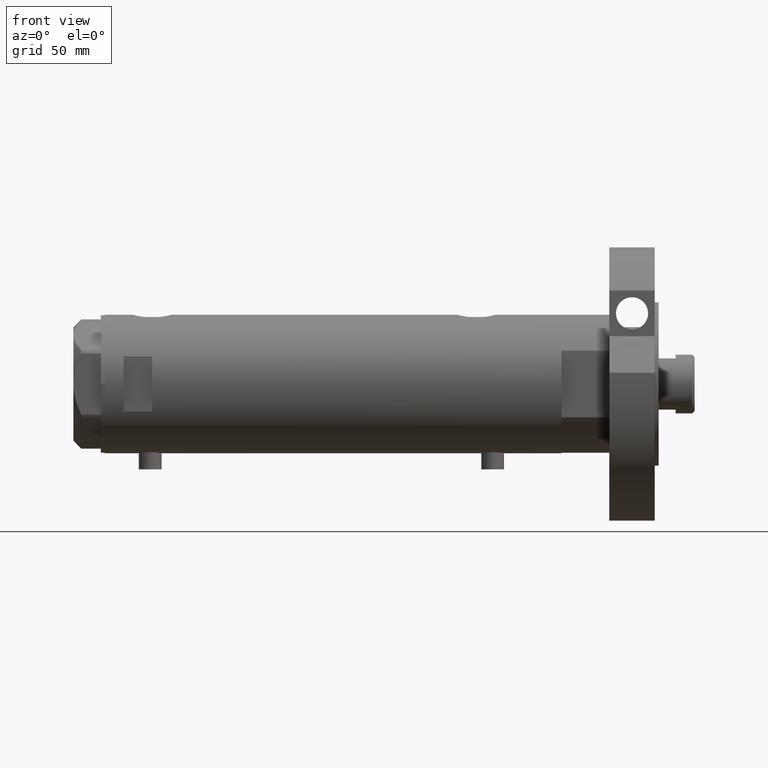
[diagram: clean part render]
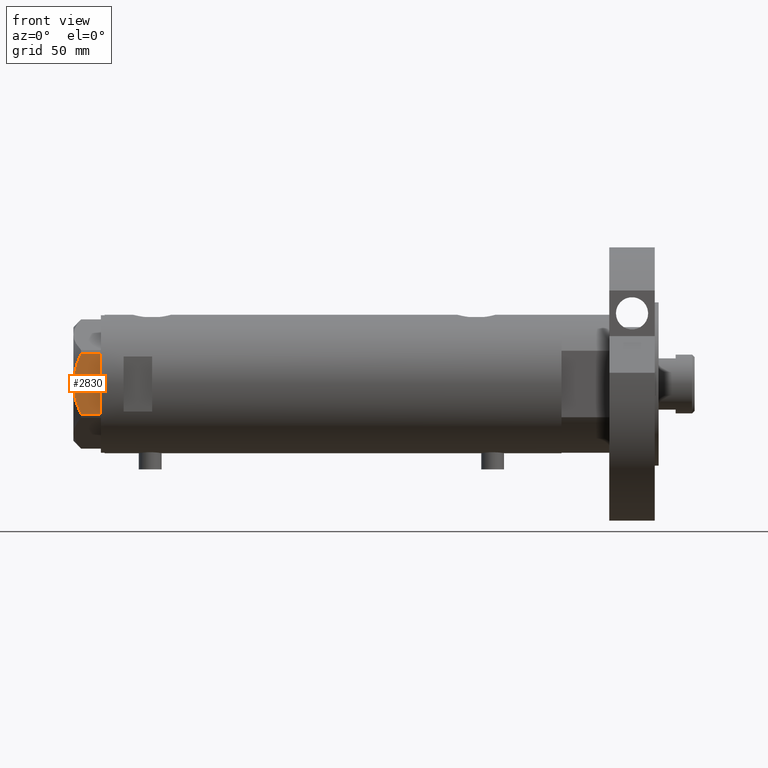
[diagram: same view with one face highlighted and labeled with its STEP entity id]
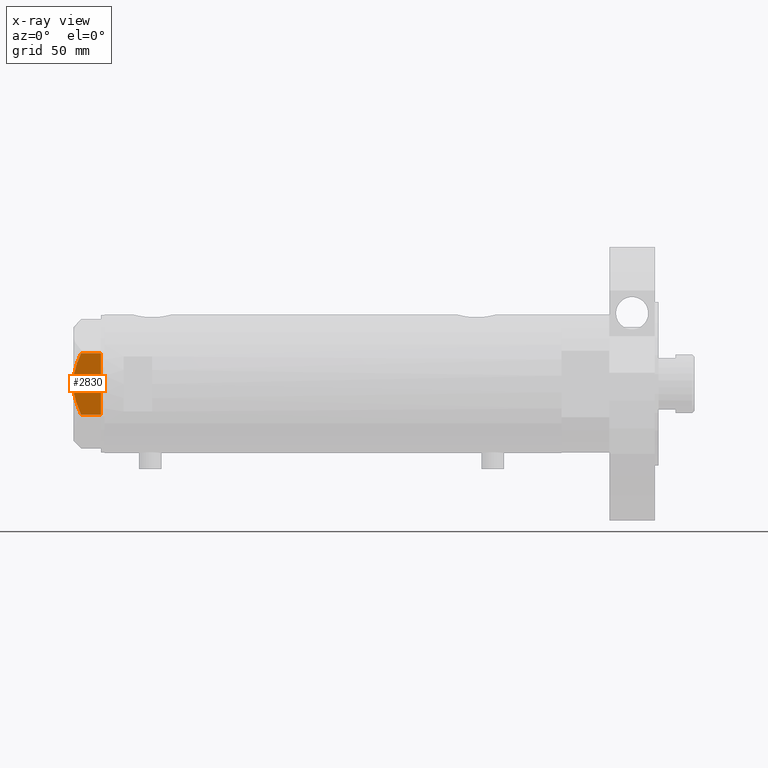
[diagram: x-ray of the same camera — body ghosted, the highlighted face saturated]
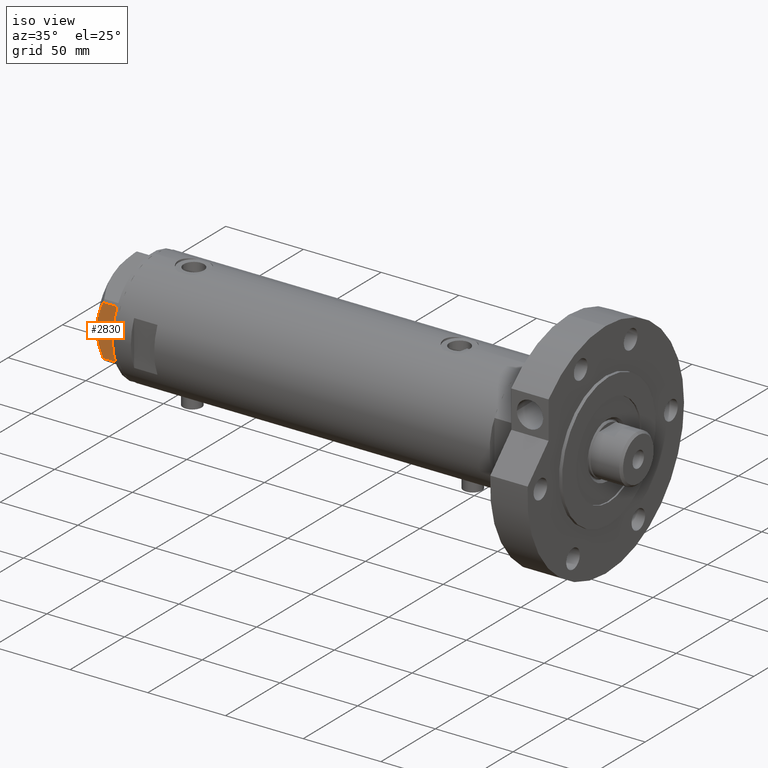
[diagram: same view with one face highlighted and labeled with its STEP entity id]
A machine part, front view. The second image highlights one B-rep face of the part: STEP entity #2830.
The next image is the same camera in x-ray: the body ghosted, the highlighted face saturated — about 0% of this face is hidden behind the body in this view.
A second angle (iso view) of the same face is appended — the face is thin or edge-on in the first view.
In plain terms, the highlighted planar face has unit normal (-0, 1, 0).
Its self-contained STEP definition (entity closure, byte-faithful):
#104 = DIRECTION ( 'NONE',  ( 0.000000000000000000, 0.000000000000000000, 1.000000000000000000 ) ) ;
#144 = CARTESIAN_POINT ( 'NONE',  ( -29.99999999999999289, -5.607365453019637513, 14.01139032121647965 ) ) ;
#173 = CARTESIAN_POINT ( 'NONE',  ( -30.00000000000000000, 0.000000000000000000, 14.50000000000000000 ) ) ;
#239 = CARTESIAN_POINT ( 'NONE',  ( -30.00000000000000000, 17.32050807568877460, 14.50000000000000000 ) ) ;
#299 = CARTESIAN_POINT ( 'NONE',  ( -30.00000000000000000, 17.32050807568877460, 0.000000000000000000 ) ) ;
#351 = EDGE_CURVE ( 'NONE', #1240, #4100, #5952, .T. ) ;
#368 = VECTOR ( 'NONE', #3786, 1000.000000000000000 ) ;
#469 = LINE ( 'NONE', #5257, #702 ) ;
#607 = CARTESIAN_POINT ( 'NONE',  ( -30.00000000000000000, 16.20050807568875584, 10.40518423703603546 ) ) ;
#611 = CARTESIAN_POINT ( 'NONE',  ( -30.00000000000000000, -16.20050807568876294, 10.40518423703603901 ) ) ;
#702 = VECTOR ( 'NONE', #104, 1000.000000000000000 ) ;
#827 = CARTESIAN_POINT ( 'NONE',  ( -30.00000000000000000, 16.20050807568875584, 14.50000000000000000 ) ) ;
#863 = CARTESIAN_POINT ( 'NONE',  ( -30.00000000000000711, 2.830925467268496476, 14.50000000000000533 ) ) ;
#902 = CARTESIAN_POINT ( 'NONE',  ( -30.00000000000000000, 9.655259153795977767, 12.99093232113973606 ) ) ;
#947 = VERTEX_POINT ( 'NONE', #6074 ) ;
#1154 = CARTESIAN_POINT ( 'NONE',  ( -30.00000000000000000, 16.20050807568875584, 10.40518423703603546 ) ) ;
#1240 = VERTEX_POINT ( 'NONE', #5923 ) ;
#1304 = EDGE_CURVE ( 'NONE', #1854, #1240, #1834, .T. ) ;
#1592 = ORIENTED_EDGE ( 'NONE', *, *, #1304, .T. ) ;
#1649 = DIRECTION ( 'NONE',  ( -0.000000000000000000, 0.000000000000000000, -1.000000000000000000 ) ) ;
#1674 = CARTESIAN_POINT ( 'NONE',  ( -29.99999999999999645, -12.97715359595204809, 11.81918444541430624 ) ) ;
#1751 = CARTESIAN_POINT ( 'NONE',  ( -30.00000000000000000, 11.66725319103952607, 12.31690447555093293 ) ) ;
#1834 = LINE ( 'NONE', #827, #368 ) ;
#1840 = VECTOR ( 'NONE', #4006, 1000.000000000000000 ) ;
#1854 = VERTEX_POINT ( 'NONE', #607 ) ;
#1967 = B_SPLINE_CURVE_WITH_KNOTS ( 'NONE', 3,
 ( #1154, #5018, #3581, #1751, #5122, #902, #3211, #2247, #863, #2700 ),
 .UNSPECIFIED., .F., .F.,
 ( 4, 2, 2, 2, 4 ),
 ( 0.04501738275285960267, 0.04922240792374713014, 0.05132492050919089388, 0.05342743309463465068, 0.06183748343640969869 ),
 .UNSPECIFIED. ) ;
#2024 = CARTESIAN_POINT ( 'NONE',  ( -29.99999999999999289, -13.63320717147166405, 11.55272916346384804 ) ) ;
#2247 = CARTESIAN_POINT ( 'NONE',  ( -30.00000000000000000, 5.593935073701701732, 14.09487059093540573 ) ) ;
#2602 = CARTESIAN_POINT ( 'NONE',  ( -30.00000000000000000, -6.973771051792319042, 13.72753822183687511 ) ) ;
#2700 = CARTESIAN_POINT ( 'NONE',  ( -30.00000000000000000, 0.000000000000000000, 14.50000000000000000 ) ) ;
#2830 = ADVANCED_FACE ( 'NONE', ( #5920 ), #3657, .F. ) ;
#2980 = CARTESIAN_POINT ( 'NONE',  ( -30.00000000000000000, -3.526431665117130798, 14.30125973663612626 ) ) ;
#3032 = EDGE_LOOP ( 'NONE', ( #3815, #1592, #5856, #4400, #4227 ) ) ;
#3108 = CARTESIAN_POINT ( 'NONE',  ( -30.00000000000000000, -0.7060353153488233557, 14.49999999999999822 ) ) ;
#3211 = CARTESIAN_POINT ( 'NONE',  ( -30.00000000000000711, 8.981118657900116986, 13.19130745470829247 ) ) ;
#3343 = VERTEX_POINT ( 'NONE', #4387 ) ;
#3381 = EDGE_CURVE ( 'NONE', #4100, #947, #469, .T. ) ;
#3581 = CARTESIAN_POINT ( 'NONE',  ( -30.00000000000000355, 13.64854889245356695, 11.56384586935411996 ) ) ;
#3592 = CARTESIAN_POINT ( 'NONE',  ( -29.99999999999999289, -14.92797448277034533, 10.99622797424084553 ) ) ;
#3599 = DIRECTION ( 'NONE',  ( 1.000000000000000000, 0.000000000000000000, -0.000000000000000000 ) ) ;
#3610 = EDGE_CURVE ( 'NONE', #1854, #3343, #1967, .T. ) ;
#3657 = PLANE ( 'NONE',  #5457 ) ;
#3786 = DIRECTION ( 'NONE',  ( 0.000000000000000000, 0.000000000000000000, -1.000000000000000000 ) ) ;
#3815 = ORIENTED_EDGE ( 'NONE', *, *, #3610, .F. ) ;
#4006 = DIRECTION ( 'NONE',  ( 0.000000000000000000, -1.000000000000000000, 0.000000000000000000 ) ) ;
#4100 = VERTEX_POINT ( 'NONE', #5962 ) ;
#4227 = ORIENTED_EDGE ( 'NONE', *, *, #6075, .F. ) ;
#4387 = CARTESIAN_POINT ( 'NONE',  ( -30.00000000000000000, 0.000000000000000000, 14.50000000000000000 ) ) ;
#4396 = CARTESIAN_POINT ( 'NONE',  ( -29.99999999999999645, -9.671229349009038856, 13.00645148086949554 ) ) ;
#4400 = ORIENTED_EDGE ( 'NONE', *, *, #3381, .T. ) ;
#4873 = CARTESIAN_POINT ( 'NONE',  ( -30.00000000000000000, -11.00230860792644982, 12.56933207488871673 ) ) ;
#4912 = CARTESIAN_POINT ( 'NONE',  ( -29.99999999999999645, -2.827567415490778835, 14.37523681947611109 ) ) ;
#5018 = CARTESIAN_POINT ( 'NONE',  ( -30.00000000000001421, 14.93680064777130312, 11.00564802993687508 ) ) ;
#5122 = CARTESIAN_POINT ( 'NONE',  ( -30.00000000000000355, 10.99748736931232607, 12.55407623651775495 ) ) ;
#5257 = CARTESIAN_POINT ( 'NONE',  ( -30.00000000000000000, -16.20050807568876294, 14.50000000000000000 ) ) ;
#5366 = CARTESIAN_POINT ( 'NONE',  ( -29.99999999999999289, -15.56759648729806322, 10.70591879357992227 ) ) ;
#5457 = AXIS2_PLACEMENT_3D ( 'NONE', #239, #3599, #1649 ) ;
#5583 = B_SPLINE_CURVE_WITH_KNOTS ( 'NONE', 3,
 ( #173, #3108, #5944, #4912, #2980, #144, #2602, #4396, #4873, #1674, #2024, #3592, #5366, #611 ),
 .UNSPECIFIED., .F., .F.,
 ( 4, 2, 2, 2, 2, 2, 4 ),
 ( 0.06183748343640969869, 0.06393495742991751885, 0.06603243142342535288, 0.07022737941044099319, 0.07442232739745664738, 0.07651980139096448141, 0.07861727538447230157 ),
 .UNSPECIFIED. ) ;
#5856 = ORIENTED_EDGE ( 'NONE', *, *, #351, .T. ) ;
#5920 = FACE_OUTER_BOUND ( 'NONE', #3032, .T. ) ;
#5923 = CARTESIAN_POINT ( 'NONE',  ( -30.00000000000000000, 16.20050807568875584, 0.000000000000000000 ) ) ;
#5944 = CARTESIAN_POINT ( 'NONE',  ( -30.00000000000000355, -1.418661615092686290, 14.47469700449902952 ) ) ;
#5952 = LINE ( 'NONE', #299, #1840 ) ;
#5962 = CARTESIAN_POINT ( 'NONE',  ( -30.00000000000000000, -16.20050807568876294, 0.000000000000000000 ) ) ;
#6074 = CARTESIAN_POINT ( 'NONE',  ( -30.00000000000000000, -16.20050807568876294, 10.40518423703603901 ) ) ;
#6075 = EDGE_CURVE ( 'NONE', #3343, #947, #5583, .T. ) ;